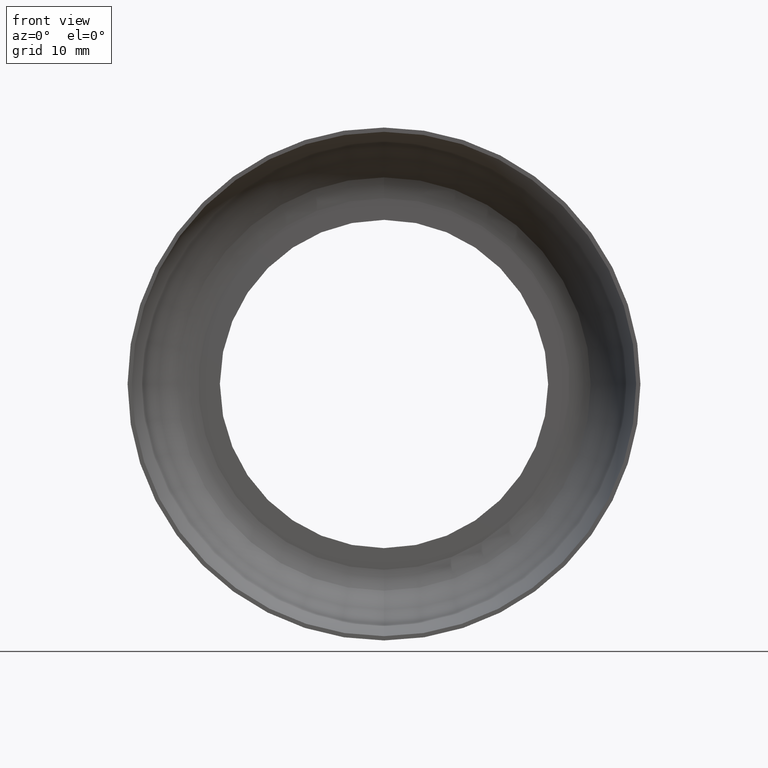
[diagram: clean part render]
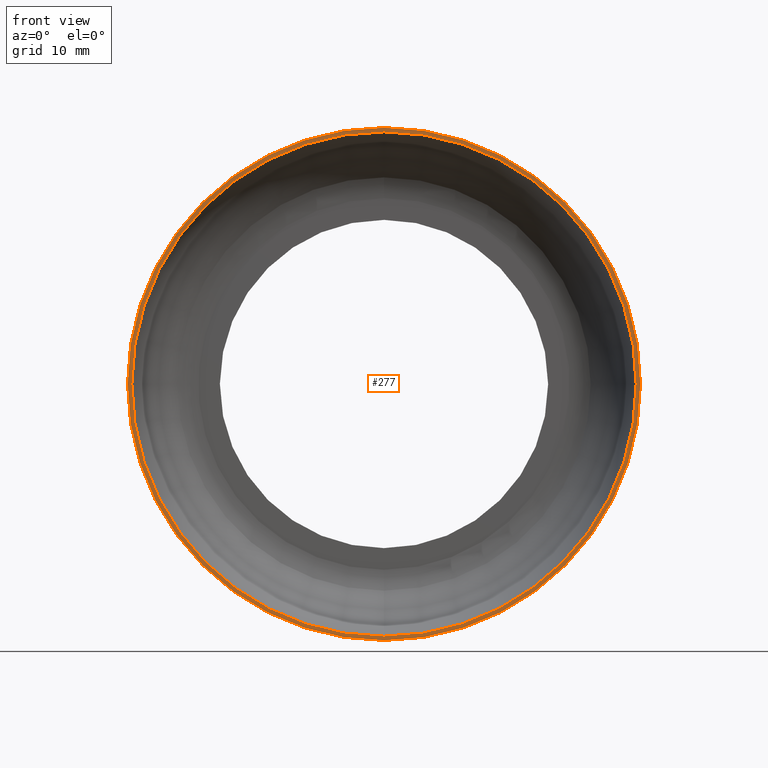
[diagram: same view with one face highlighted and labeled with its STEP entity id]
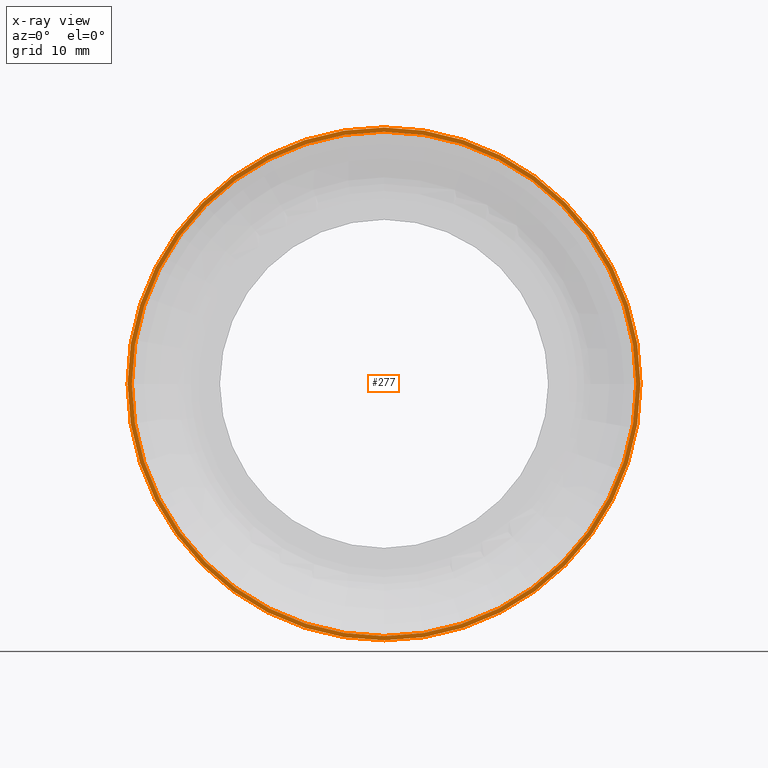
[diagram: x-ray of the same camera — body ghosted, the highlighted face saturated]
A machine part, front view. The second image highlights one B-rep face of the part: STEP entity #277.
The next image is the same camera in x-ray: the body ghosted, the highlighted face saturated — about 0% of this face is hidden behind the body in this view.
In plain terms, the highlighted planar face has unit normal (0, -1, -0).
Its self-contained STEP definition (entity closure, byte-faithful):
#15 = ORIENTED_EDGE ( 'NONE', *, *, #230, .T. ) ;
#18 = CIRCLE ( 'NONE', #26, 29.50000000000000000 ) ;
#26 = AXIS2_PLACEMENT_3D ( 'NONE', #352, #332, #394 ) ;
#29 = AXIS2_PLACEMENT_3D ( 'NONE', #65, #321, #126 ) ;
#31 = VERTEX_POINT ( 'NONE', #147 ) ;
#34 = DIRECTION ( 'NONE',  ( -0.0000000000000000000, -1.000000000000000000, -0.0000000000000000000 ) ) ;
#37 = CARTESIAN_POINT ( 'NONE',  ( 0.0000000000000000000, 0.0000000000000000000, 0.0000000000000000000 ) ) ;
#47 = CIRCLE ( 'NONE', #398, 29.50000000000000000 ) ;
#58 = AXIS2_PLACEMENT_3D ( 'NONE', #37, #94, #96 ) ;
#65 = CARTESIAN_POINT ( 'NONE',  ( 0.0000000000000000000, 0.0000000000000000000, 0.0000000000000000000 ) ) ;
#94 = DIRECTION ( 'NONE',  ( 0.0000000000000000000, -1.000000000000000000, -0.0000000000000000000 ) ) ;
#95 = EDGE_CURVE ( 'NONE', #226, #199, #18, .T. ) ;
#96 = DIRECTION ( 'NONE',  ( 0.0000000000000000000, 0.0000000000000000000, -1.000000000000000000 ) ) ;
#110 = VERTEX_POINT ( 'NONE', #169 ) ;
#111 = ORIENTED_EDGE ( 'NONE', *, *, #305, .T. ) ;
#114 = CIRCLE ( 'NONE', #29, 30.00000000000000000 ) ;
#123 = CIRCLE ( 'NONE', #150, 30.00000000000000000 ) ;
#126 = DIRECTION ( 'NONE',  ( 0.0000000000000000000, 0.0000000000000000000, -1.000000000000000000 ) ) ;
#147 = CARTESIAN_POINT ( 'NONE',  ( 0.0000000000000000000, 0.0000000000000000000, -30.00000000000000000 ) ) ;
#149 = CARTESIAN_POINT ( 'NONE',  ( 0.0000000000000000000, 0.0000000000000000000, 0.0000000000000000000 ) ) ;
#150 = AXIS2_PLACEMENT_3D ( 'NONE', #235, #355, #207 ) ;
#168 = FACE_OUTER_BOUND ( 'NONE', #281, .T. ) ;
#169 = CARTESIAN_POINT ( 'NONE',  ( 3.673940397442059200E-015, 0.0000000000000000000, 30.00000000000000000 ) ) ;
#171 = EDGE_CURVE ( 'NONE', #199, #226, #47, .T. ) ;
#181 = ORIENTED_EDGE ( 'NONE', *, *, #171, .F. ) ;
#197 = CARTESIAN_POINT ( 'NONE',  ( 3.612708057484691600E-015, 0.0000000000000000000, 29.50000000000000000 ) ) ;
#199 = VERTEX_POINT ( 'NONE', #384 ) ;
#207 = DIRECTION ( 'NONE',  ( 0.0000000000000000000, 0.0000000000000000000, -1.000000000000000000 ) ) ;
#226 = VERTEX_POINT ( 'NONE', #197 ) ;
#230 = EDGE_CURVE ( 'NONE', #110, #31, #114, .T. ) ;
#232 = ORIENTED_EDGE ( 'NONE', *, *, #95, .F. ) ;
#235 = CARTESIAN_POINT ( 'NONE',  ( 0.0000000000000000000, 0.0000000000000000000, 0.0000000000000000000 ) ) ;
#256 = FACE_BOUND ( 'NONE', #303, .T. ) ;
#259 = PLANE ( 'NONE',  #58 ) ;
#277 = ADVANCED_FACE ( 'NONE', ( #256, #168 ), #259, .T. ) ;
#281 = EDGE_LOOP ( 'NONE', ( #111, #15 ) ) ;
#303 = EDGE_LOOP ( 'NONE', ( #181, #232 ) ) ;
#305 = EDGE_CURVE ( 'NONE', #31, #110, #123, .T. ) ;
#321 = DIRECTION ( 'NONE',  ( -0.0000000000000000000, -1.000000000000000000, -0.0000000000000000000 ) ) ;
#332 = DIRECTION ( 'NONE',  ( -0.0000000000000000000, -1.000000000000000000, -0.0000000000000000000 ) ) ;
#352 = CARTESIAN_POINT ( 'NONE',  ( 0.0000000000000000000, 0.0000000000000000000, 0.0000000000000000000 ) ) ;
#355 = DIRECTION ( 'NONE',  ( -0.0000000000000000000, -1.000000000000000000, -0.0000000000000000000 ) ) ;
#384 = CARTESIAN_POINT ( 'NONE',  ( 0.0000000000000000000, 0.0000000000000000000, -29.50000000000000000 ) ) ;
#394 = DIRECTION ( 'NONE',  ( 0.0000000000000000000, 0.0000000000000000000, -1.000000000000000000 ) ) ;
#398 = AXIS2_PLACEMENT_3D ( 'NONE', #149, #34, #402 ) ;
#402 = DIRECTION ( 'NONE',  ( 0.0000000000000000000, 0.0000000000000000000, -1.000000000000000000 ) ) ;